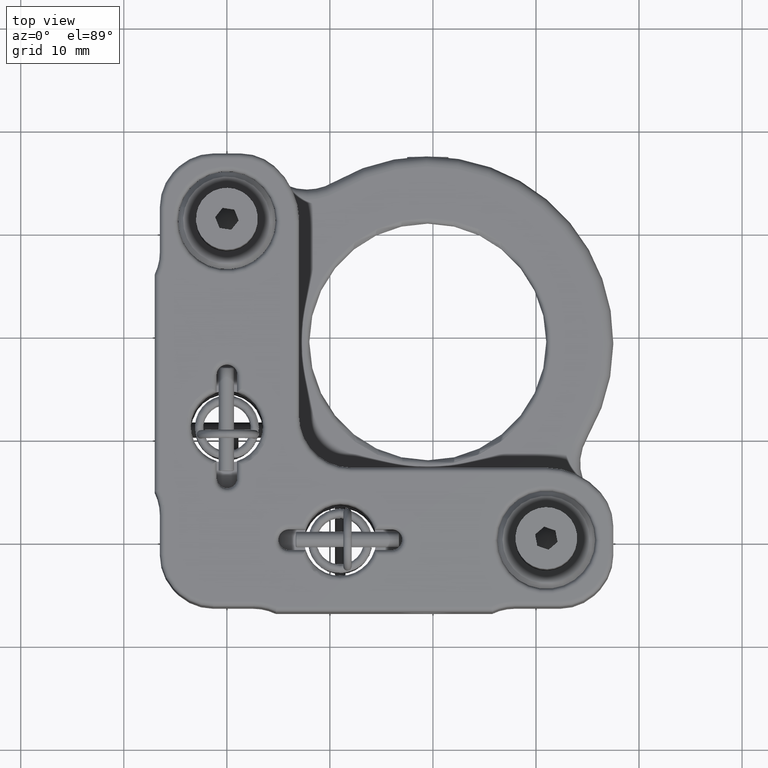
[diagram: clean part render]
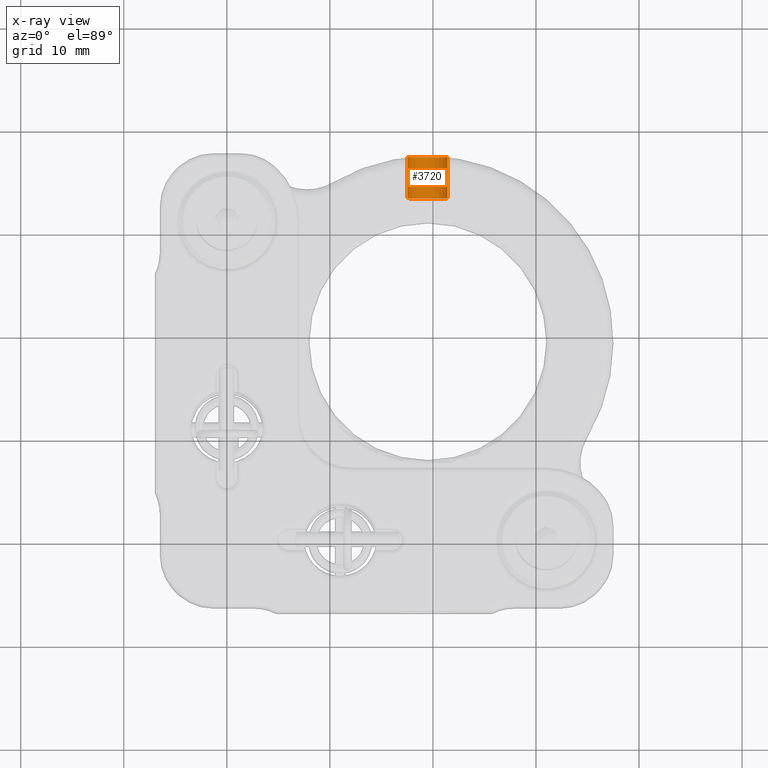
[diagram: x-ray — body ghosted, one internal face saturated and labeled with its STEP entity id]
A machine part, top view, then the same camera in x-ray: the body is ghosted and one INTERNAL B-rep face — a face not visible from any outside direction — is saturated and labeled: STEP entity #3720.
In plain terms, the highlighted cylindrical surface (edge-blend (fillet) strip) has radius 2 mm, axis along (0, 1, -0).
Its self-contained STEP definition (entity closure, byte-faithful):
#411 = VERTEX_POINT ( 'NONE', #20247 ) ;
#627 = ORIENTED_EDGE ( 'NONE', *, *, #9265, .F. ) ;
#1627 = CARTESIAN_POINT ( 'NONE',  ( 19.50000000000011000, 37.49999999999992200, -14.49999999999999300 ) ) ;
#3063 = CIRCLE ( 'NONE', #15718, 2.000000000000001800 ) ;
#3313 = DIRECTION ( 'NONE',  ( -0.9626105456598974500, 3.469446951953611000E-015, 0.2708891606992694900 ) ) ;
#3327 = CYLINDRICAL_SURFACE ( 'NONE', #5657, 2.000000000000001800 ) ;
#3368 = DIRECTION ( 'NONE',  ( 0.9626105456598974500, -3.469446951953611000E-015, -0.2708891606992694900 ) ) ;
#3617 = VERTEX_POINT ( 'NONE', #16650 ) ;
#3720 = ADVANCED_FACE ( 'NONE', ( #5432 ), #3327, .T. ) ;
#4148 = VERTEX_POINT ( 'NONE', #17675 ) ;
#5432 = FACE_OUTER_BOUND ( 'NONE', #5521, .T. ) ;
#5521 = EDGE_LOOP ( 'NONE', ( #13938, #17725, #5755, #627 ) ) ;
#5657 = AXIS2_PLACEMENT_3D ( 'NONE', #18491, #11736, #3368 ) ;
#5755 = ORIENTED_EDGE ( 'NONE', *, *, #19651, .T. ) ;
#6869 = EDGE_CURVE ( 'NONE', #3617, #411, #3063, .T. ) ;
#7836 = CARTESIAN_POINT ( 'NONE',  ( 21.42522109131989400, 33.49999999999991500, -15.04177832139853200 ) ) ;
#8834 = LINE ( 'NONE', #21606, #21851 ) ;
#8835 = CARTESIAN_POINT ( 'NONE',  ( 19.50000000000009600, 33.49999999999992200, -14.49999999999999300 ) ) ;
#9265 = EDGE_CURVE ( 'NONE', #411, #4148, #17319, .T. ) ;
#10540 = DIRECTION ( 'NONE',  ( -0.9626105456598974500, 3.469446951953611000E-015, 0.2708891606992694900 ) ) ;
#11736 = DIRECTION ( 'NONE',  ( 3.398969439795130300E-015, 1.000000000000000000, -1.605084303934148700E-016 ) ) ;
#12835 = VECTOR ( 'NONE', #19702, 1000.000000000000000 ) ;
#13052 = CARTESIAN_POINT ( 'NONE',  ( 17.57477890868031500, 37.49999999999992900, -13.95822167860145400 ) ) ;
#13504 = DIRECTION ( 'NONE',  ( -3.398969439795130300E-015, -1.000000000000000000, 1.605084303934148700E-016 ) ) ;
#13938 = ORIENTED_EDGE ( 'NONE', *, *, #6869, .F. ) ;
#14212 = VERTEX_POINT ( 'NONE', #13052 ) ;
#15718 = AXIS2_PLACEMENT_3D ( 'NONE', #8835, #20700, #10540 ) ;
#16650 = CARTESIAN_POINT ( 'NONE',  ( 17.57477890868030100, 33.49999999999992900, -13.95822167860145100 ) ) ;
#17319 = LINE ( 'NONE', #7836, #12835 ) ;
#17540 = AXIS2_PLACEMENT_3D ( 'NONE', #1627, #13504, #3313 ) ;
#17675 = CARTESIAN_POINT ( 'NONE',  ( 21.42522109131990900, 37.49999999999991500, -15.04177832139853300 ) ) ;
#17725 = ORIENTED_EDGE ( 'NONE', *, *, #18160, .T. ) ;
#18123 = DIRECTION ( 'NONE',  ( 3.398969439795130300E-015, 1.000000000000000000, -1.605084303934148500E-016 ) ) ;
#18160 = EDGE_CURVE ( 'NONE', #3617, #14212, #8834, .T. ) ;
#18491 = CARTESIAN_POINT ( 'NONE',  ( 19.50000000000009600, 33.49999999999992200, -14.49999999999999300 ) ) ;
#19651 = EDGE_CURVE ( 'NONE', #14212, #4148, #21739, .T. ) ;
#19702 = DIRECTION ( 'NONE',  ( 3.398969439795130300E-015, 1.000000000000000000, -1.605084303934148500E-016 ) ) ;
#20247 = CARTESIAN_POINT ( 'NONE',  ( 21.42522109131989400, 33.49999999999991500, -15.04177832139853000 ) ) ;
#20700 = DIRECTION ( 'NONE',  ( -3.398969439795130300E-015, -1.000000000000000000, 1.605084303934148700E-016 ) ) ;
#21606 = CARTESIAN_POINT ( 'NONE',  ( 17.57477890868030100, 33.49999999999992900, -13.95822167860145200 ) ) ;
#21739 = CIRCLE ( 'NONE', #17540, 2.000000000000001800 ) ;
#21851 = VECTOR ( 'NONE', #18123, 1000.000000000000000 ) ;